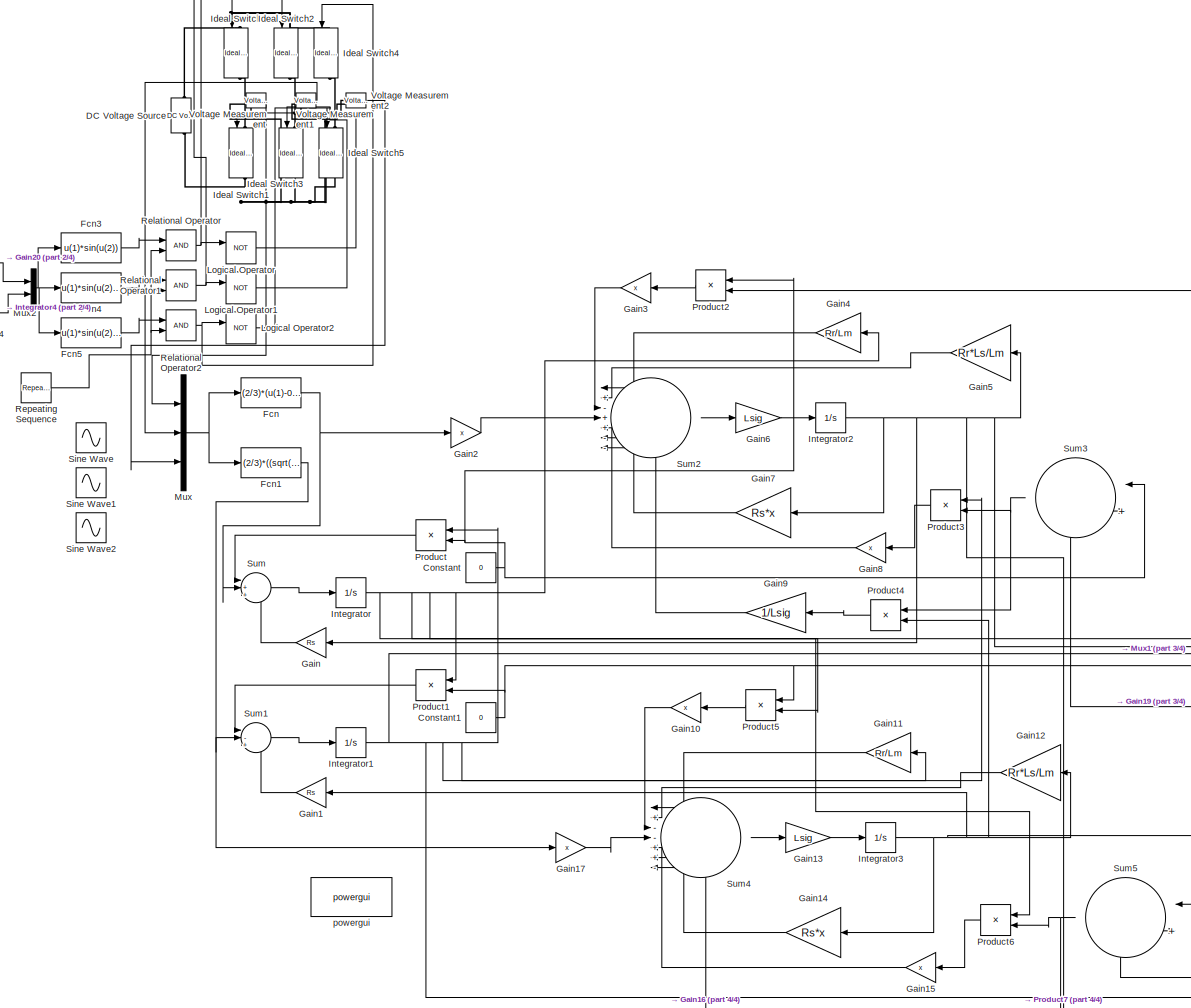
[diagram: root canvas - part 1/4, center side, full height]
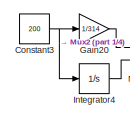
[diagram: root canvas - part 2/4, top left region]
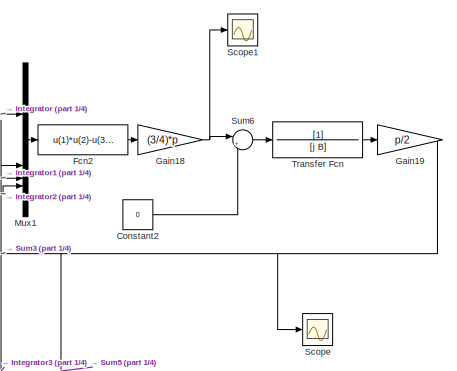
[diagram: root canvas - part 3/4, middle right region]
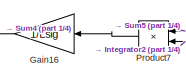
[diagram: root canvas - part 4/4, bottom center region]
MODEL slx_726a207bd34a
KIND model
CONFIG AbsTol = auto
CONFIG EnableMultiTasking = off
CONFIG FixedStep = 1e-6
CONFIG MaxStep = auto
CONFIG MinStep = auto
CONFIG RelTol = 1e-3
CONFIG SampleTimeConstraint = Unconstrained
CONFIG SolverName = ode1
CONFIG StartTime = 0.0
CONFIG StopTime = 2
BLOCK [Constant] Constant
  Value = 0
BLOCK [Constant] Constant1
  Value = 0
BLOCK [Constant] Constant2
  Value = 0
BLOCK [Constant] Constant3
  Value = 200
BLOCK [Reference] DC Voltage Source  REF=spsDCVoltageSourceLib/DC Voltage Source
  LibrarySourceBlock = sps_lib/Sources/DC Voltage Source
  SourceBlock = spsDCVoltageSourceLib/DC Voltage Source
  SourceType = DC Voltage Source
BLOCK [Fcn] Fcn
  Expr = (2/3)*(u(1)-0.5*u(2)-0.5*u(3))
BLOCK [Fcn] Fcn1
  Expr = (2/3)*((sqrt(3)/2*u(2))-(sqrt(3)/2*u(3)))
BLOCK [Fcn] Fcn2
  Expr = u(1)*u(2)-u(3)*u(4)
BLOCK [Fcn] Fcn3
  Expr = u(1)*sin(u(2))
BLOCK [Fcn] Fcn4
  Expr = u(1)*sin(u(2)-2*pi/3)
BLOCK [Fcn] Fcn5
  Expr = u(1)*sin(u(2)+2*pi/3)
BLOCK [Gain] Gain
  Gain = Rs
  NameLocation = top
BLOCK [Gain] Gain1
  Gain = Rs
  NameLocation = top
BLOCK [Gain] Gain10
  Gain = x
BLOCK [Gain] Gain11
  Gain = Rr/Lm
BLOCK [Gain] Gain12
  Gain = Rr*Ls/Lm
BLOCK [Gain] Gain13
  Gain = Lsig
  NameLocation = top
BLOCK [Gain] Gain14
  Gain = Rs*x
BLOCK [Gain] Gain15
  Gain = x
BLOCK [Gain] Gain16
  Gain = 1/Lsig
BLOCK [Gain] Gain17
  Gain = x
  NameLocation = top
BLOCK [Gain] Gain18
  Gain = (3/4)*p
BLOCK [Gain] Gain19
  Gain = p/2
BLOCK [Gain] Gain2
  Gain = x
  NameLocation = top
BLOCK [Gain] Gain20
  Gain = 1/314
BLOCK [Gain] Gain3
  Gain = x
BLOCK [Gain] Gain4
  Gain = Rr/Lm
BLOCK [Gain] Gain5
  Gain = Rr*Ls/Lm
BLOCK [Gain] Gain6
  Gain = Lsig
  NameLocation = top
BLOCK [Gain] Gain7
  Gain = Rs*x
BLOCK [Gain] Gain8
  Gain = x
BLOCK [Gain] Gain9
  Gain = 1/Lsig
BLOCK [Reference] Ideal Switch  REF=spsIdealSwitchLib/Ideal Switch
  LibrarySourceBlock = sps_lib/Power Electronics/Ideal Switch
  NameLocation = left
  SourceBlock = spsIdealSwitchLib/Ideal Switch
  SourceType = Ideal Switch
BLOCK [Reference] Ideal Switch1  REF=spsIdealSwitchLib/Ideal Switch
  LibrarySourceBlock = sps_lib/Power Electronics/Ideal Switch
  NameLocation = left
  SourceBlock = spsIdealSwitchLib/Ideal Switch
  SourceType = Ideal Switch
BLOCK [Reference] Ideal Switch2  REF=spsIdealSwitchLib/Ideal Switch
  LibrarySourceBlock = sps_lib/Power Electronics/Ideal Switch
  NameLocation = left
  SourceBlock = spsIdealSwitchLib/Ideal Switch
  SourceType = Ideal Switch
BLOCK [Reference] Ideal Switch3  REF=spsIdealSwitchLib/Ideal Switch
  LibrarySourceBlock = sps_lib/Power Electronics/Ideal Switch
  NameLocation = left
  SourceBlock = spsIdealSwitchLib/Ideal Switch
  SourceType = Ideal Switch
BLOCK [Reference] Ideal Switch4  REF=spsIdealSwitchLib/Ideal Switch
  LibrarySourceBlock = sps_lib/Power Electronics/Ideal Switch
  NameLocation = left
  SourceBlock = spsIdealSwitchLib/Ideal Switch
  SourceType = Ideal Switch
BLOCK [Reference] Ideal Switch5  REF=spsIdealSwitchLib/Ideal Switch
  LibrarySourceBlock = sps_lib/Power Electronics/Ideal Switch
  NameLocation = left
  SourceBlock = spsIdealSwitchLib/Ideal Switch
  SourceType = Ideal Switch
BLOCK [Integrator] Integrator
BLOCK [Integrator] Integrator1
BLOCK [Integrator] Integrator2
BLOCK [Integrator] Integrator3
BLOCK [Integrator] Integrator4
BLOCK [Logic] Logical Operator
  AllPortsSameDT = off
  Operator = NOT
  OutDataTypeStr = boolean
BLOCK [Logic] Logical Operator1
  AllPortsSameDT = off
  Operator = NOT
  OutDataTypeStr = boolean
BLOCK [Logic] Logical Operator2
  AllPortsSameDT = off
  Operator = NOT
  OutDataTypeStr = boolean
BLOCK [Mux] Mux
  DisplayOption = bar
  Inputs = 3
BLOCK [Mux] Mux1
  DisplayOption = bar
BLOCK [Mux] Mux2
  DisplayOption = bar
  Inputs = 2
BLOCK [Product] Product
  NameLocation = top
BLOCK [Product] Product1
  NameLocation = top
BLOCK [Product] Product2
  NameLocation = top
BLOCK [Product] Product3
  NameLocation = top
BLOCK [Product] Product4
  NameLocation = top
BLOCK [Product] Product5
  NameLocation = top
BLOCK [Product] Product6
  NameLocation = top
BLOCK [Product] Product7
  NameLocation = top
BLOCK [RelationalOperator] Relational Operator
  InputSameDT = off
  OutDataTypeStr = boolean
  RndMeth = Simplest
BLOCK [RelationalOperator] Relational Operator1
  InputSameDT = off
  OutDataTypeStr = boolean
  RndMeth = Simplest
BLOCK [RelationalOperator] Relational Operator2
  InputSameDT = off
  OutDataTypeStr = boolean
  RndMeth = Simplest
BLOCK [Reference] Repeating Sequence  REF=simulink/Sources/Repeating
Sequence
  SourceBlock = simulink/Sources/Repeating\nSequence
  SourceType = Repeating table
BLOCK [Scope] Scope
  Floating = off
  NumInputPorts = 1
  ScopeSpecificationString = Simulink.scopes.TimeScopeBlockCfg('CurrentConfiguration', extmgr.ConfigurationSet(extmgr.Configuration('Core','General UI',true),extmgr.Configuration('Core','Source UI',true),extmgr.Configuration('Sources','WiredSimulink',true),extmgr.Configuration('Visuals','Time Domain',true,'SerializedDisplays',{struct('MinYLimReal','-25.03988','MaxYLimReal','225.35894','YLabelReal','','MinYLimMag','0.00000','M...<+1460ch>
BLOCK [Scope] Scope1
  Floating = off
  NumInputPorts = 1
  ScopeSpecificationString = Simulink.scopes.TimeScopeBlockCfg('CurrentConfiguration', extmgr.ConfigurationSet(extmgr.Configuration('Core','General UI',true),extmgr.Configuration('Core','Source UI',true),extmgr.Configuration('Sources','WiredSimulink',true,'DataLoggingVariableName','ScopeData1'),extmgr.Configuration('Visuals','Time Domain',true,'SerializedDisplays',{struct('MinYLimReal','-10.21152','MaxYLimReal','57.71764','YL...<+1469ch>
BLOCK [Sin] Sine Wave
  Amplitude = 283
  Frequency = 2*pi*50
  SampleTime = 0
BLOCK [Sin] Sine Wave1
  Amplitude = 283
  Frequency = 2*pi*50
  Phase = -(2/3)*pi
  SampleTime = 0
BLOCK [Sin] Sine Wave2
  Amplitude = 283
  Frequency = 2*pi*50
  Phase = (2/3)*pi
  SampleTime = 0
BLOCK [Sum] Sum
  Inputs = |++-
BLOCK [Sum] Sum1
  Inputs = |-+-
BLOCK [Sum] Sum2
  Inputs = |+-++--+
BLOCK [Sum] Sum3
  Inputs = |+-
  NameLocation = top
BLOCK [Sum] Sum4
  Inputs = |+--++--
BLOCK [Sum] Sum5
  Inputs = |+-
  NameLocation = top
BLOCK [Sum] Sum6
  Inputs = |+-
BLOCK [TransferFcn] Transfer Fcn
  Denominator = [j B]
  ParameterTunability = Unconstrained
BLOCK [Reference] Voltage Measurement  REF=spsVoltageMeasurementLib/Voltage Measurement
  LibrarySourceBlock = sps_lib/Sensors and Measurements/Voltage Measurement
  SourceBlock = spsVoltageMeasurementLib/Voltage Measurement
  SourceType = Voltage Measurement
  UserDataPersistent = on
BLOCK [Reference] Voltage Measurement1  REF=spsVoltageMeasurementLib/Voltage Measurement
  LibrarySourceBlock = sps_lib/Sensors and Measurements/Voltage Measurement
  SourceBlock = spsVoltageMeasurementLib/Voltage Measurement
  SourceType = Voltage Measurement
  UserDataPersistent = on
BLOCK [Reference] Voltage Measurement2  REF=spsVoltageMeasurementLib/Voltage Measurement
  LibrarySourceBlock = sps_lib/Sensors and Measurements/Voltage Measurement
  SourceBlock = spsVoltageMeasurementLib/Voltage Measurement
  SourceType = Voltage Measurement
  UserDataPersistent = on
BLOCK [Reference] powergui  REF=sps_lib/powergui
  LibrarySourceBlock = sps_lib/powergui
  Priority = 1
  SourceBlock = sps_lib/powergui
  SourceType = PSB option menu block
NET Constant1:1 -> Product1:2, Product5:1, Sum5:1
LINE Constant2:1 -> Sum6:2
NET Constant3:1 -> Gain20:1, Integrator4:1
NET Constant:1 -> Product2:1, Product:2, Sum3:1
NET Fcn1:1 -> Gain17:1, Sum1:2
LINE Fcn2:1 -> Gain18:1
LINE Fcn3:1 -> Relational Operator:1
LINE Fcn4:1 -> Relational Operator1:1
LINE Fcn5:1 -> Relational Operator2:1
NET Fcn:1 -> Gain2:1, Sum:2
LINE Gain10:1 -> Sum4:3
LINE Gain11:1 -> Sum4:1
LINE Gain12:1 -> Sum4:2
LINE Gain13:1 -> Integrator3:1
LINE Gain14:1 -> Sum4:6
LINE Gain15:1 -> Sum4:5
LINE Gain16:1 -> Sum4:7
LINE Gain17:1 -> Sum4:4
NET Gain18:1 -> Scope1:1, Sum6:1
NET Gain19:1 -> Scope:1, Sum3:2, Sum5:2
LINE Gain1:1 -> Sum1:3
LINE Gain20:1 -> Mux2:1
LINE Gain2:1 -> Sum2:4
LINE Gain3:1 -> Sum2:3
LINE Gain4:1 -> Sum2:1
LINE Gain5:1 -> Sum2:2
LINE Gain6:1 -> Integrator2:1
LINE Gain7:1 -> Sum2:6
LINE Gain8:1 -> Sum2:5
LINE Gain9:1 -> Sum2:7
LINE Gain:1 -> Sum:3
NET Integrator1:1 -> Gain11:1, Mux1:3, Product2:2, Product3:1, Product:1
NET Integrator2:1 -> Gain5:1, Gain7:1, Gain:1, Mux1:4, Product7:2
NET Integrator3:1 -> Gain12:1, Gain14:1, Gain1:1, Mux1:2, Product4:2
LINE Integrator4:1 -> Mux2:2
NET Integrator:1 -> Gain4:1, Mux1:1, Product1:1, Product5:2, Product6:1
LINE Logical Operator1:1 -> Ideal Switch3:1
LINE Logical Operator2:1 -> Ideal Switch5:1
LINE Logical Operator:1 -> Ideal Switch1:1
LINE Mux1:1 -> Fcn2:1
NET Mux2:1 -> Fcn3:1, Fcn4:1, Fcn5:1
NET Mux:1 -> Fcn1:1, Fcn:1
LINE Product1:1 -> Sum1:1
LINE Product2:1 -> Gain3:1
LINE Product3:1 -> Gain8:1
LINE Product4:1 -> Gain9:1
LINE Product5:1 -> Gain10:1
LINE Product6:1 -> Gain15:1
LINE Product7:1 -> Gain16:1
LINE Product:1 -> Sum:1
NET Relational Operator1:1 -> Ideal Switch2:1, Logical Operator1:1
NET Relational Operator2:1 -> Ideal Switch4:1, Logical Operator2:1
NET Relational Operator:1 -> Ideal Switch:1, Logical Operator:1
NET Repeating Sequence:1 -> Relational Operator1:2, Relational Operator2:2, Relational Operator:2
LINE Sum1:1 -> Integrator1:1
LINE Sum2:1 -> Gain6:1
NET Sum3:1 -> Product3:2, Product4:1
LINE Sum4:1 -> Gain13:1
NET Sum5:1 -> Product6:2, Product7:1
LINE Sum6:1 -> Transfer Fcn:1
LINE Sum:1 -> Integrator:1
LINE Transfer Fcn:1 -> Gain19:1
LINE Voltage Measurement1:1 -> Mux:2
LINE Voltage Measurement2:1 -> Mux:3
LINE Voltage Measurement:1 -> Mux:1
PNET net1: DC Voltage Source:LConn1 -- Ideal Switch1:RConn1 -- Ideal Switch3:RConn1 -- Ideal Switch5:RConn1 -- Voltage Measurement1:LConn2 -- Voltage Measurement2:LConn2 -- Voltage Measurement:LConn2
PNET net2: DC Voltage Source:RConn1 -- Ideal Switch2:LConn1 -- Ideal Switch4:LConn1 -- Ideal Switch:LConn1
PNET net3: Ideal Switch1:LConn1 -- Ideal Switch:RConn1 -- Voltage Measurement:LConn1
PNET net4: Ideal Switch2:RConn1 -- Ideal Switch3:LConn1 -- Voltage Measurement1:LConn1
PNET net5: Ideal Switch4:RConn1 -- Ideal Switch5:LConn1 -- Voltage Measurement2:LConn1
note: NET lines group one-source signal fan-out (src -> all destinations, sorted); 1:1 wires keep LINE; PNET lines group multi-terminal physical nets as a canonical sorted terminal list (undirected conserving connections); 2-terminal nets keep the pairwise PLINE form
